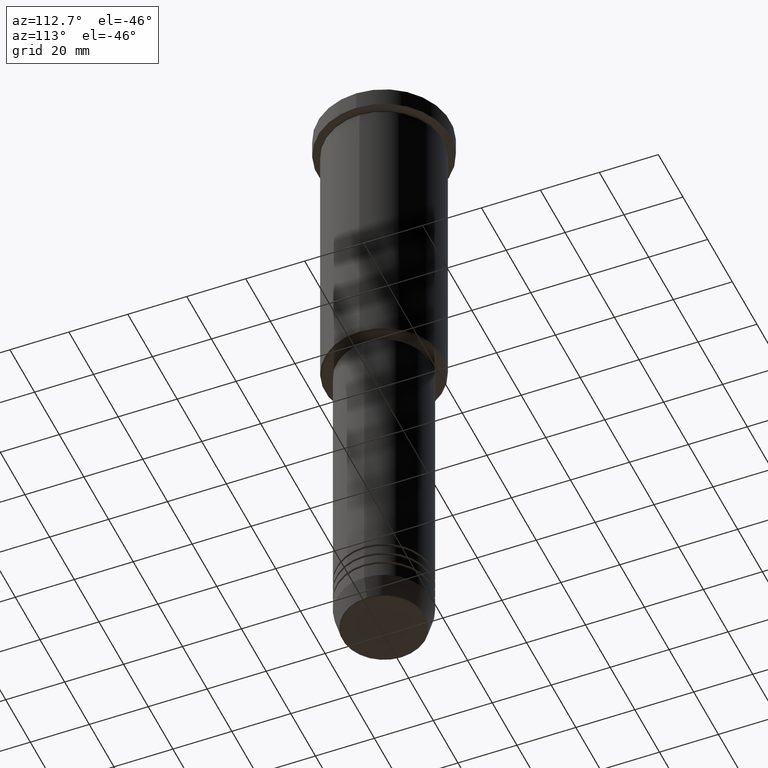
[diagram: clean part render]
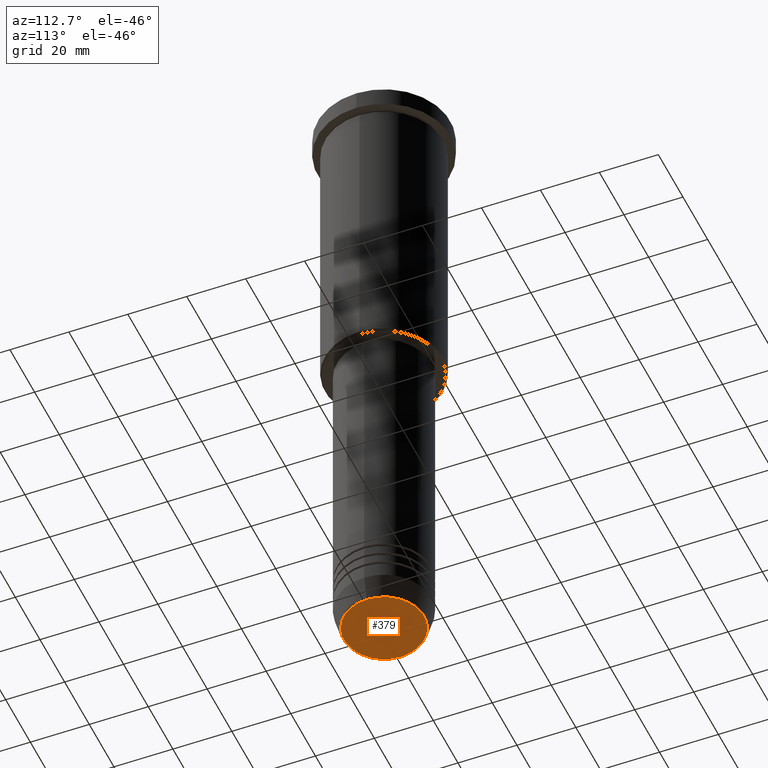
[diagram: same view with one face highlighted and labeled with its STEP entity id]
A machine part, auxiliary view. The second image highlights one B-rep face of the part: STEP entity #379.
In plain terms, the highlighted planar face has unit normal (0, -0, 1).
Its self-contained STEP definition (entity closure, byte-faithful):
#135 = DIRECTION ( 'NONE',  ( 0.000000000000000000, 0.000000000000000000, -1.000000000000000000 ) ) ;
#278 = AXIS2_PLACEMENT_3D ( 'NONE', #318, #135, #573 ) ;
#301 = CARTESIAN_POINT ( 'NONE',  ( 13.60671756277710109, 0.000000000000000000, -219.9999999999999716 ) ) ;
#318 = CARTESIAN_POINT ( 'NONE',  ( 0.000000000000000000, 0.000000000000000000, -219.9999999999999716 ) ) ;
#372 = CIRCLE ( 'NONE', #278, 13.60671756277710109 ) ;
#379 = ADVANCED_FACE ( 'NONE', ( #448 ), #883, .F. ) ;
#409 = ORIENTED_EDGE ( 'NONE', *, *, #672, .T. ) ;
#448 = FACE_OUTER_BOUND ( 'NONE', #633, .T. ) ;
#535 = CARTESIAN_POINT ( 'NONE',  ( 0.000000000000000000, 0.000000000000000000, -219.9999999999999716 ) ) ;
#554 = DIRECTION ( 'NONE',  ( 1.000000000000000000, 0.000000000000000000, 0.000000000000000000 ) ) ;
#573 = DIRECTION ( 'NONE',  ( 1.000000000000000000, 0.000000000000000000, 0.000000000000000000 ) ) ;
#605 = DIRECTION ( 'NONE',  ( 1.000000000000000000, 0.000000000000000000, 0.000000000000000000 ) ) ;
#633 = EDGE_LOOP ( 'NONE', ( #721, #409 ) ) ;
#672 = EDGE_CURVE ( 'NONE', #844, #1059, #372, .T. ) ;
#683 = CIRCLE ( 'NONE', #839, 13.60671756277710109 ) ;
#721 = ORIENTED_EDGE ( 'NONE', *, *, #923, .T. ) ;
#817 = CARTESIAN_POINT ( 'NONE',  ( 0.000000000000000000, 0.000000000000000000, -219.9999999999999716 ) ) ;
#839 = AXIS2_PLACEMENT_3D ( 'NONE', #535, #1077, #554 ) ;
#844 = VERTEX_POINT ( 'NONE', #880 ) ;
#880 = CARTESIAN_POINT ( 'NONE',  ( -13.60671756277710109, 1.695915260300172047E-15, -219.9999999999999716 ) ) ;
#883 = PLANE ( 'NONE',  #1051 ) ;
#923 = EDGE_CURVE ( 'NONE', #1059, #844, #683, .T. ) ;
#1051 = AXIS2_PLACEMENT_3D ( 'NONE', #817, #1057, #605 ) ;
#1057 = DIRECTION ( 'NONE',  ( 0.000000000000000000, -0.000000000000000000, 1.000000000000000000 ) ) ;
#1059 = VERTEX_POINT ( 'NONE', #301 ) ;
#1077 = DIRECTION ( 'NONE',  ( 0.000000000000000000, 0.000000000000000000, -1.000000000000000000 ) ) ;